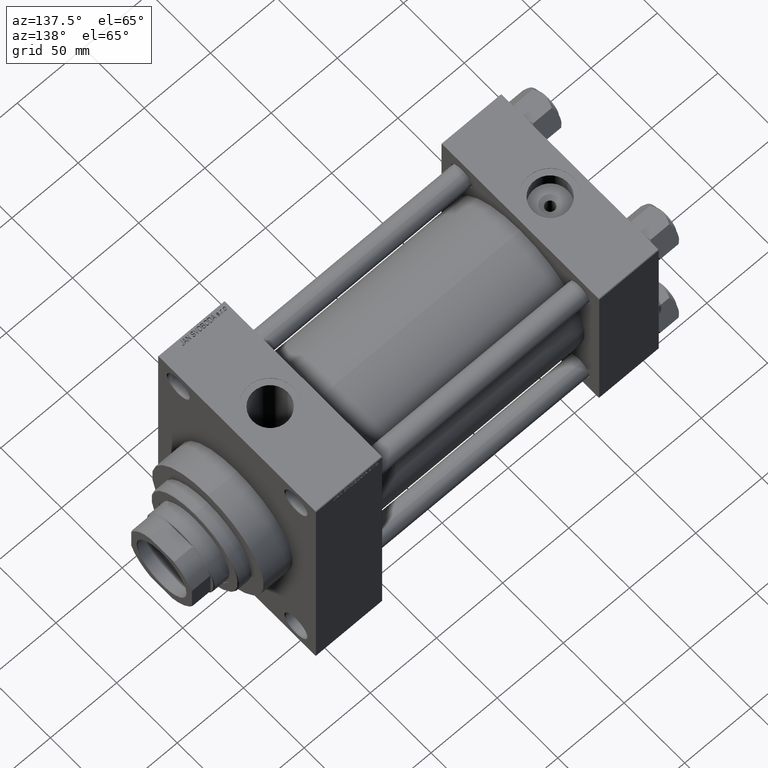
[diagram: clean part render]
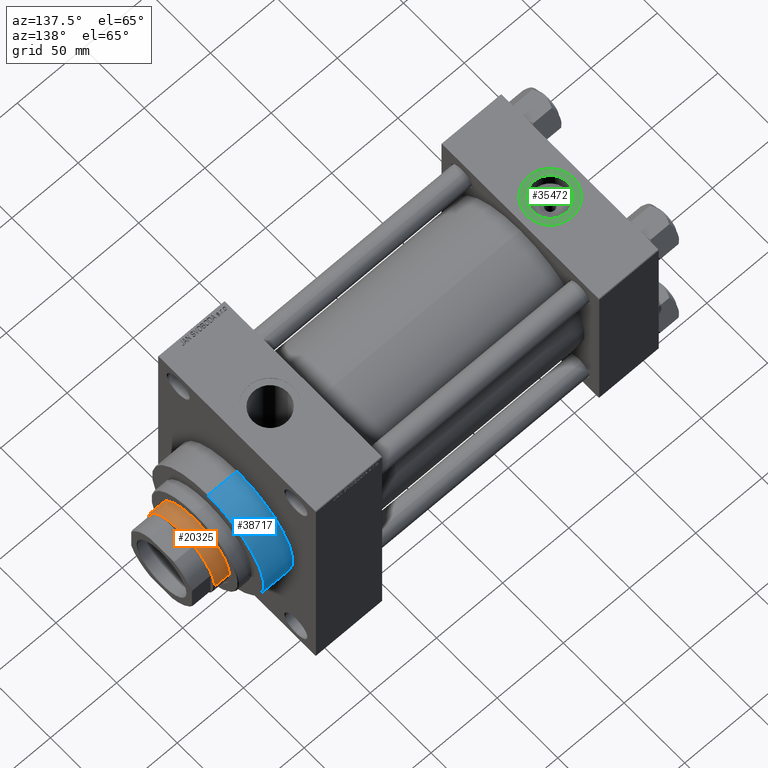
[diagram: same view with three faces highlighted in distinct colors, each labeled with its STEP entity id]
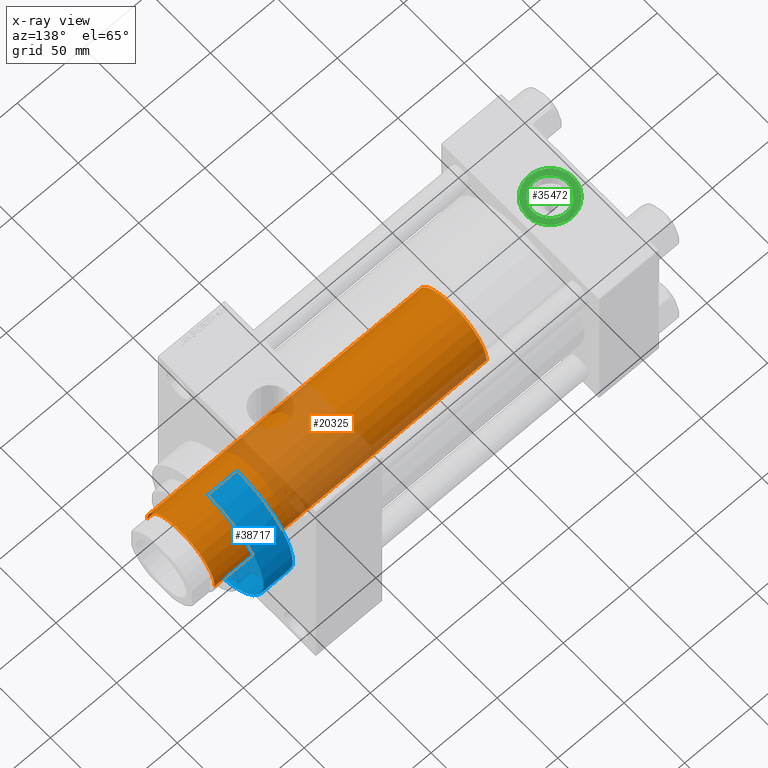
[diagram: x-ray of the same camera — body ghosted, the three highlighted faces saturated]
A machine part, auxiliary view with three faces highlighted in distinct colors.
The next image is the same camera in x-ray (body ghosted, the three faces saturated) — at least one of them is partly hidden behind the body in this view.
Their STEP definitions:

[orange] entity #20325 — the highlighted cylindrical surface (partial cylindrical patch) has radius 28 mm, axis along (-1, 0, 0).
#957 = EDGE_CURVE ( 'NONE', #7607, #19029, #8036, .T. ) ;
#2578 = AXIS2_PLACEMENT_3D ( 'NONE', #29168, #7174, #39793 ) ;
#7174 = DIRECTION ( 'NONE',  ( 0.000000000000000000, 0.000000000000000000, 1.000000000000000000 ) ) ;
#7345 = AXIS2_PLACEMENT_3D ( 'NONE', #12289, #13238, #16622 ) ;
#7607 = VERTEX_POINT ( 'NONE', #16936 ) ;
#7621 = CARTESIAN_POINT ( 'NONE',  ( 28.00000000000000000, 3.429011037612589276E-15, 51.00000000000000000 ) ) ;
#8036 = CIRCLE ( 'NONE', #7345, 28.00000000000000000 ) ;
#11268 = VECTOR ( 'NONE', #16193, 1000.000000000000000 ) ;
#11449 = LINE ( 'NONE', #36788, #42012 ) ;
#12273 = DIRECTION ( 'NONE',  ( -0.000000000000000000, -0.000000000000000000, -1.000000000000000000 ) ) ;
#12289 = CARTESIAN_POINT ( 'NONE',  ( 0.000000000000000000, 0.000000000000000000, 256.5000000000000000 ) ) ;
#13238 = DIRECTION ( 'NONE',  ( 0.000000000000000000, 0.000000000000000000, -1.000000000000000000 ) ) ;
#14579 = ORIENTED_EDGE ( 'NONE', *, *, #32220, .T. ) ;
#16193 = DIRECTION ( 'NONE',  ( -0.000000000000000000, -0.000000000000000000, -1.000000000000000000 ) ) ;
#16363 = FACE_OUTER_BOUND ( 'NONE', #40324, .T. ) ;
#16424 = CIRCLE ( 'NONE', #2578, 28.00000000000000000 ) ;
#16622 = DIRECTION ( 'NONE',  ( 1.000000000000000000, 0.000000000000000000, 0.000000000000000000 ) ) ;
#16936 = CARTESIAN_POINT ( 'NONE',  ( 28.00000000000000000, 3.429011037612589276E-15, 256.5000000000000000 ) ) ;
#19027 = CARTESIAN_POINT ( 'NONE',  ( -28.00000000000000000, 0.000000000000000000, 51.00000000000000000 ) ) ;
#19029 = VERTEX_POINT ( 'NONE', #41292 ) ;
#19335 = LINE ( 'NONE', #34304, #11268 ) ;
#19353 = VERTEX_POINT ( 'NONE', #19027 ) ;
#19606 = VERTEX_POINT ( 'NONE', #7621 ) ;
#20230 = CYLINDRICAL_SURFACE ( 'NONE', #24798, 28.00000000000000000 ) ;
#20325 = ADVANCED_FACE ( 'NONE', ( #16363 ), #20230, .T. ) ;
#24220 = ORIENTED_EDGE ( 'NONE', *, *, #957, .T. ) ;
#24798 = AXIS2_PLACEMENT_3D ( 'NONE', #45365, #12273, #38797 ) ;
#28599 = ORIENTED_EDGE ( 'NONE', *, *, #44370, .T. ) ;
#29168 = CARTESIAN_POINT ( 'NONE',  ( 0.000000000000000000, 0.000000000000000000, 51.00000000000000000 ) ) ;
#32220 = EDGE_CURVE ( 'NONE', #19029, #19353, #11449, .T. ) ;
#33413 = DIRECTION ( 'NONE',  ( -0.000000000000000000, -0.000000000000000000, -1.000000000000000000 ) ) ;
#34304 = CARTESIAN_POINT ( 'NONE',  ( 28.00000000000000000, 3.429011037612589276E-15, 257.0000000000000000 ) ) ;
#35041 = EDGE_CURVE ( 'NONE', #7607, #19606, #19335, .T. ) ;
#36788 = CARTESIAN_POINT ( 'NONE',  ( -28.00000000000000000, 0.000000000000000000, 257.0000000000000000 ) ) ;
#38797 = DIRECTION ( 'NONE',  ( -1.000000000000000000, 0.000000000000000000, 0.000000000000000000 ) ) ;
#39793 = DIRECTION ( 'NONE',  ( 1.000000000000000000, 0.000000000000000000, 0.000000000000000000 ) ) ;
#40154 = ORIENTED_EDGE ( 'NONE', *, *, #35041, .F. ) ;
#40324 = EDGE_LOOP ( 'NONE', ( #40154, #24220, #14579, #28599 ) ) ;
#41292 = CARTESIAN_POINT ( 'NONE',  ( -28.00000000000000000, 0.000000000000000000, 256.5000000000000000 ) ) ;
#42012 = VECTOR ( 'NONE', #33413, 1000.000000000000000 ) ;
#44370 = EDGE_CURVE ( 'NONE', #19353, #19606, #16424, .T. ) ;
#45365 = CARTESIAN_POINT ( 'NONE',  ( 0.000000000000000000, 0.000000000000000000, 257.0000000000000000 ) ) ;

[blue] entity #38717 — the highlighted cylindrical surface (partial cylindrical patch) has radius 46 mm, axis along (-1, -0, -0).
#3740 = FACE_OUTER_BOUND ( 'NONE', #4846, .T. ) ;
#4846 = EDGE_LOOP ( 'NONE', ( #20278, #46478, #35408, #44914 ) ) ;
#5316 = CARTESIAN_POINT ( 'NONE',  ( 281.0000000000000000, 5.633375276077824704E-15, -46.00000000000000000 ) ) ;
#9512 = CIRCLE ( 'NONE', #23415, 46.00000000000000000 ) ;
#10969 = CARTESIAN_POINT ( 'NONE',  ( 281.0000000000000000, 0.000000000000000000, 0.000000000000000000 ) ) ;
#11758 = DIRECTION ( 'NONE',  ( 1.000000000000000000, 0.000000000000000000, 0.000000000000000000 ) ) ;
#12760 = DIRECTION ( 'NONE',  ( 1.000000000000000000, 0.000000000000000000, 0.000000000000000000 ) ) ;
#12950 = DIRECTION ( 'NONE',  ( -1.000000000000000000, -0.000000000000000000, -0.000000000000000000 ) ) ;
#13185 = VERTEX_POINT ( 'NONE', #39950 ) ;
#13581 = AXIS2_PLACEMENT_3D ( 'NONE', #10969, #17096, #31826 ) ;
#14440 = VERTEX_POINT ( 'NONE', #35746 ) ;
#16565 = LINE ( 'NONE', #31298, #34896 ) ;
#16587 = LINE ( 'NONE', #31315, #31678 ) ;
#17096 = DIRECTION ( 'NONE',  ( -1.000000000000000000, -0.000000000000000000, -0.000000000000000000 ) ) ;
#18762 = EDGE_CURVE ( 'NONE', #40040, #44527, #16587, .T. ) ;
#19470 = DIRECTION ( 'NONE',  ( 0.000000000000000000, 0.000000000000000000, -1.000000000000000000 ) ) ;
#19772 = CARTESIAN_POINT ( 'NONE',  ( 281.0000000000000000, 0.000000000000000000, 0.000000000000000000 ) ) ;
#20278 = ORIENTED_EDGE ( 'NONE', *, *, #28777, .F. ) ;
#23415 = AXIS2_PLACEMENT_3D ( 'NONE', #19772, #12760, #27492 ) ;
#25896 = CIRCLE ( 'NONE', #38207, 46.00000000000000000 ) ;
#26263 = CARTESIAN_POINT ( 'NONE',  ( 259.0000000000000000, 5.633375276077824704E-15, -46.00000000000000000 ) ) ;
#26736 = CARTESIAN_POINT ( 'NONE',  ( 259.0000000000000000, 0.000000000000000000, 0.000000000000000000 ) ) ;
#27492 = DIRECTION ( 'NONE',  ( 0.000000000000000000, 0.000000000000000000, -1.000000000000000000 ) ) ;
#28777 = EDGE_CURVE ( 'NONE', #40040, #13185, #9512, .T. ) ;
#31298 = CARTESIAN_POINT ( 'NONE',  ( 281.0000000000000000, 0.000000000000000000, 46.00000000000000000 ) ) ;
#31315 = CARTESIAN_POINT ( 'NONE',  ( 281.0000000000000000, 5.633375276077824704E-15, -46.00000000000000000 ) ) ;
#31678 = VECTOR ( 'NONE', #42419, 1000.000000000000000 ) ;
#31826 = DIRECTION ( 'NONE',  ( 0.000000000000000000, 0.000000000000000000, 1.000000000000000000 ) ) ;
#34031 = EDGE_CURVE ( 'NONE', #44527, #14440, #25896, .T. ) ;
#34896 = VECTOR ( 'NONE', #12950, 1000.000000000000000 ) ;
#35408 = ORIENTED_EDGE ( 'NONE', *, *, #34031, .T. ) ;
#35746 = CARTESIAN_POINT ( 'NONE',  ( 259.0000000000000000, 0.000000000000000000, 46.00000000000000000 ) ) ;
#38207 = AXIS2_PLACEMENT_3D ( 'NONE', #26736, #11758, #19470 ) ;
#38717 = ADVANCED_FACE ( 'NONE', ( #3740 ), #42691, .T. ) ;
#39950 = CARTESIAN_POINT ( 'NONE',  ( 281.0000000000000000, 0.000000000000000000, 46.00000000000000000 ) ) ;
#40040 = VERTEX_POINT ( 'NONE', #5316 ) ;
#42419 = DIRECTION ( 'NONE',  ( -1.000000000000000000, -0.000000000000000000, -0.000000000000000000 ) ) ;
#42691 = CYLINDRICAL_SURFACE ( 'NONE', #13581, 46.00000000000000000 ) ;
#43817 = EDGE_CURVE ( 'NONE', #13185, #14440, #16565, .T. ) ;
#44527 = VERTEX_POINT ( 'NONE', #26263 ) ;
#44914 = ORIENTED_EDGE ( 'NONE', *, *, #43817, .F. ) ;
#46478 = ORIENTED_EDGE ( 'NONE', *, *, #18762, .T. ) ;

[green] entity #35472 — the highlighted planar face has unit normal (0, 0, 1).
#1717 = CARTESIAN_POINT ( 'NONE',  ( 9.279999999999994031, -7.054634311411234321E-15, 64.79999999999999716 ) ) ;
#2120 = AXIS2_PLACEMENT_3D ( 'NONE', #16392, #27266, #41512 ) ;
#3307 = CARTESIAN_POINT ( 'NONE',  ( 22.50000000000000000, -8.673617379884035472E-15, 64.79999999999999716 ) ) ;
#3854 = EDGE_CURVE ( 'NONE', #41996, #43138, #30488, .T. ) ;
#5254 = VERTEX_POINT ( 'NONE', #12364 ) ;
#5811 = CARTESIAN_POINT ( 'NONE',  ( 35.71999999999999886, -8.673617379884035472E-15, 64.79999999999999716 ) ) ;
#6841 = ORIENTED_EDGE ( 'NONE', *, *, #20862, .F. ) ;
#7058 = AXIS2_PLACEMENT_3D ( 'NONE', #26836, #45429, #15722 ) ;
#7059 = VERTEX_POINT ( 'NONE', #37765 ) ;
#7823 = CIRCLE ( 'NONE', #7058, 13.22000000000000242 ) ;
#12364 = CARTESIAN_POINT ( 'NONE',  ( 4.999999999999997335, -6.530485481376167224E-15, 64.79999999999999716 ) ) ;
#12942 = CIRCLE ( 'NONE', #2120, 17.50000000000000000 ) ;
#15477 = CIRCLE ( 'NONE', #47191, 17.50000000000000000 ) ;
#15722 = DIRECTION ( 'NONE',  ( 1.000000000000000000, 0.000000000000000000, 0.000000000000000000 ) ) ;
#16326 = DIRECTION ( 'NONE',  ( 0.000000000000000000, 0.000000000000000000, 1.000000000000000000 ) ) ;
#16392 = CARTESIAN_POINT ( 'NONE',  ( 22.50000000000000000, -8.673617379884035472E-15, 64.79999999999999716 ) ) ;
#19212 = DIRECTION ( 'NONE',  ( 1.000000000000000000, 0.000000000000000000, 0.000000000000000000 ) ) ;
#20862 = EDGE_CURVE ( 'NONE', #43138, #41996, #7823, .T. ) ;
#21260 = AXIS2_PLACEMENT_3D ( 'NONE', #34184, #38503, #19212 ) ;
#21669 = FACE_BOUND ( 'NONE', #30726, .T. ) ;
#21987 = ORIENTED_EDGE ( 'NONE', *, *, #3854, .F. ) ;
#22307 = EDGE_CURVE ( 'NONE', #7059, #5254, #15477, .T. ) ;
#23628 = AXIS2_PLACEMENT_3D ( 'NONE', #3307, #32065, #29148 ) ;
#25525 = PLANE ( 'NONE',  #23628 ) ;
#26836 = CARTESIAN_POINT ( 'NONE',  ( 22.50000000000000000, -8.673617379884035472E-15, 64.79999999999999716 ) ) ;
#27266 = DIRECTION ( 'NONE',  ( 0.000000000000000000, 0.000000000000000000, 1.000000000000000000 ) ) ;
#28274 = ORIENTED_EDGE ( 'NONE', *, *, #22307, .T. ) ;
#29148 = DIRECTION ( 'NONE',  ( 1.000000000000000000, 0.000000000000000000, -0.000000000000000000 ) ) ;
#30488 = CIRCLE ( 'NONE', #21260, 13.22000000000000242 ) ;
#30726 = EDGE_LOOP ( 'NONE', ( #21987, #6841 ) ) ;
#32065 = DIRECTION ( 'NONE',  ( 0.000000000000000000, 0.000000000000000000, 1.000000000000000000 ) ) ;
#34184 = CARTESIAN_POINT ( 'NONE',  ( 22.50000000000000000, -8.673617379884035472E-15, 64.79999999999999716 ) ) ;
#35390 = DIRECTION ( 'NONE',  ( 1.000000000000000000, 0.000000000000000000, 0.000000000000000000 ) ) ;
#35472 = ADVANCED_FACE ( 'NONE', ( #21669, #36370 ), #25525, .T. ) ;
#36370 = FACE_OUTER_BOUND ( 'NONE', #43786, .T. ) ;
#37578 = ORIENTED_EDGE ( 'NONE', *, *, #39433, .T. ) ;
#37765 = CARTESIAN_POINT ( 'NONE',  ( 40.00000000000000000, -8.673617379884035472E-15, 64.79999999999999716 ) ) ;
#38503 = DIRECTION ( 'NONE',  ( 0.000000000000000000, 0.000000000000000000, 1.000000000000000000 ) ) ;
#39433 = EDGE_CURVE ( 'NONE', #5254, #7059, #12942, .T. ) ;
#41512 = DIRECTION ( 'NONE',  ( 1.000000000000000000, 0.000000000000000000, 0.000000000000000000 ) ) ;
#41996 = VERTEX_POINT ( 'NONE', #5811 ) ;
#43138 = VERTEX_POINT ( 'NONE', #1717 ) ;
#43786 = EDGE_LOOP ( 'NONE', ( #28274, #37578 ) ) ;
#45429 = DIRECTION ( 'NONE',  ( 0.000000000000000000, 0.000000000000000000, 1.000000000000000000 ) ) ;
#46754 = CARTESIAN_POINT ( 'NONE',  ( 22.50000000000000000, -8.673617379884035472E-15, 64.79999999999999716 ) ) ;
#47191 = AXIS2_PLACEMENT_3D ( 'NONE', #46754, #16326, #35390 ) ;